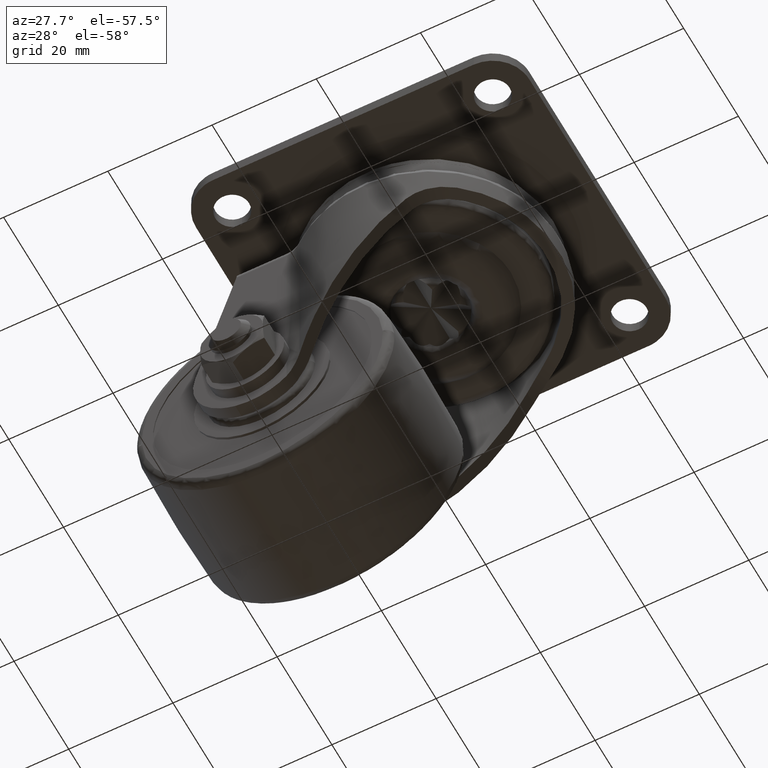
[diagram: clean part render]
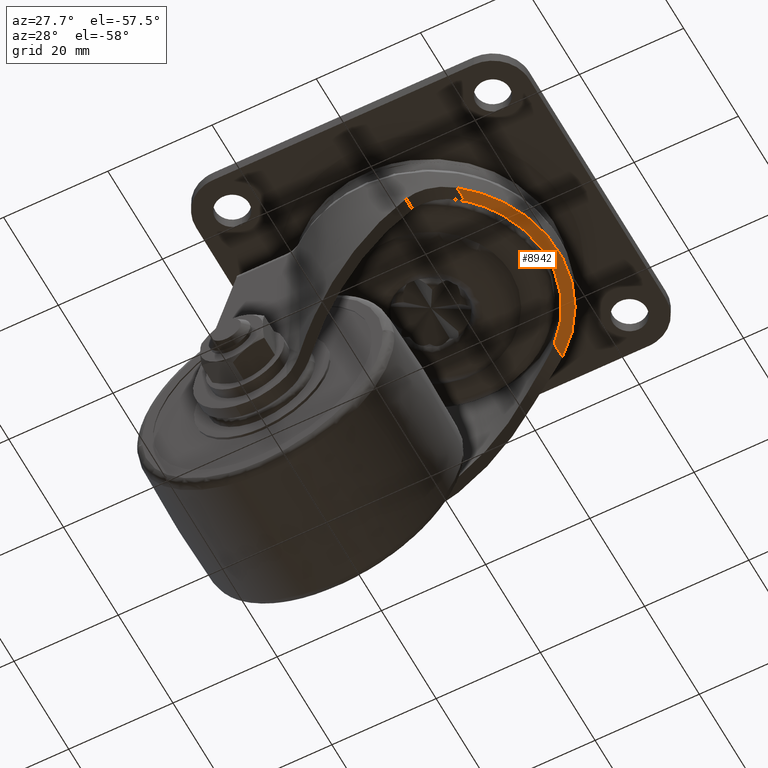
[diagram: same view with one face highlighted and labeled with its STEP entity id]
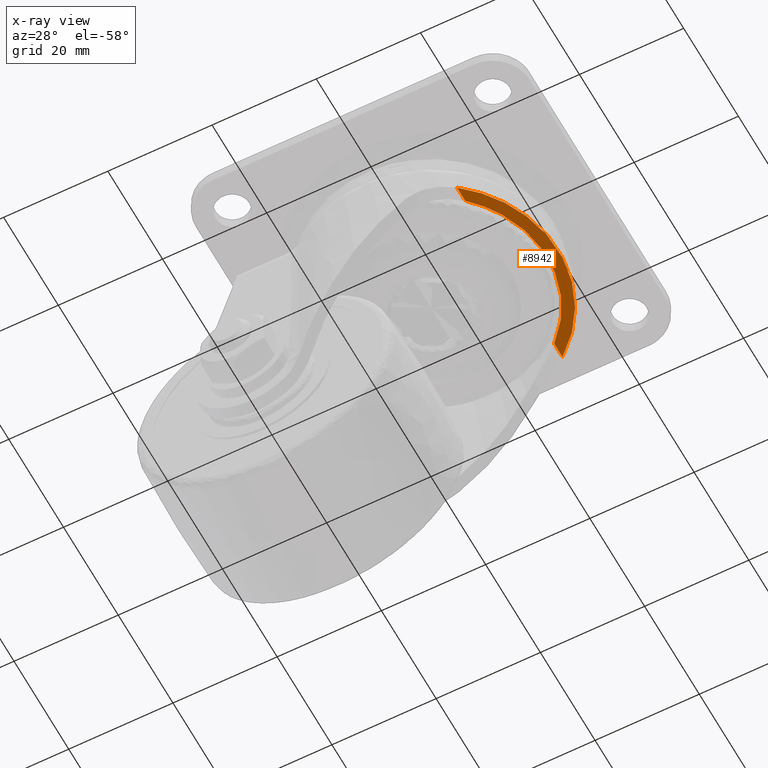
[diagram: x-ray of the same camera — body ghosted, the highlighted face saturated]
A machine part, auxiliary view. The second image highlights one B-rep face of the part: STEP entity #8942.
The next image is the same camera in x-ray: the body ghosted, the highlighted face saturated — about 0% of this face is hidden behind the body in this view.
In plain terms, the highlighted face is a freeform B-spline surface patch.
Its self-contained STEP definition (entity closure, byte-faithful):
#8877=CARTESIAN_POINT('',(24.968570492268199,-21.204392320989669,-16.300000000000001));
#8878=CARTESIAN_POINT('',(14.650638256119530,-21.204392320989669,-16.300000000000001));
#8879=CARTESIAN_POINT('',(24.968570492268199,21.204393355167539,-16.300000000000001));
#8880=CARTESIAN_POINT('',(14.650638256119530,21.204393355167539,-16.300000000000001));
#8881=B_SPLINE_SURFACE_WITH_KNOTS('',1,1,((#8877,#8879),(#8878,#8880)),.UNSPECIFIED.,.F.,.F.,.U.,(2,2),(2,2),(0.0,10.317932236148669),(0.0,42.408785676157208),.UNSPECIFIED.);
#8882=CARTESIAN_POINT('',(15.119209000000151,19.278472948195748,-16.300000000000001));
#8883=VERTEX_POINT('',#8882);
#8884=CARTESIAN_POINT('',(15.119209000000151,-19.278472948195748,-16.300000000000001));
#8885=VERTEX_POINT('',#8884);
#8886=CARTESIAN_POINT('',(15.119209000000151,19.278472948195748,-16.300000000000001));
#8887=CARTESIAN_POINT('',(16.074147137751609,18.529636923405061,-16.299999999999969));
#8888=CARTESIAN_POINT('',(17.658306222329280,17.084872820967831,-16.300000000000079));
#8889=CARTESIAN_POINT('',(19.710390806725879,14.651140702535900,-16.299999999999940));
#8890=CARTESIAN_POINT('',(21.424639600449691,12.036055902041101,-16.300000000000011));
#8891=CARTESIAN_POINT('',(22.798465383354820,9.161158893992884,-16.300000000000079));
#8892=CARTESIAN_POINT('',(23.676965673086229,6.463898660308917,-16.299999999999780));
#8893=CARTESIAN_POINT('',(24.225345527612038,3.919535422413526,-16.300000000000018));
#8894=CARTESIAN_POINT('',(24.513076561604240,1.389117850514920,-16.300000000000399));
#8895=CARTESIAN_POINT('',(24.513074905361730,-1.389125485997275,-16.299999999999560));
#8896=CARTESIAN_POINT('',(24.225332106824929,-3.919534302081320,-16.300000000000249));
#8897=CARTESIAN_POINT('',(23.591740403504819,-6.859718056645995,-16.299999999999571));
#8898=CARTESIAN_POINT('',(22.587024814353200,-9.703219176497761,-16.299999999999859));
#8899=CARTESIAN_POINT('',(21.220718479578242,-12.319893755213810,-16.299999999999990));
#8900=CARTESIAN_POINT('',(19.833277996094541,-14.452945964029700,-16.300000000000061));
#8901=CARTESIAN_POINT('',(17.950344202876970,-16.801775450322928,-16.299999999999940));
#8902=CARTESIAN_POINT('',(16.210596546954580,-18.422690283167029,-16.300000000000018));
#8903=CARTESIAN_POINT('',(15.119209000000151,-19.278472948195748,-16.300000000000001));
#8904=B_SPLINE_CURVE_WITH_KNOTS('',3,(#8886,#8887,#8888,#8889,#8890,#8891,#8892,#8893,#8894,#8895,#8896,#8897,#8898,#8899,#8900,#8901,#8902,#8903),.UNSPECIFIED.,.F.,.U.,(4,1,1,1,1,1,1,1,1,1,1,1,1,1,1,4),(0.000000010872093,3.640598288508102,6.414416920337168,9.534958627160854,13.002225730986170,15.949392707626190,18.029758739875501,20.803567174876370,23.577347514498051,26.351161758877719,28.431510900555239,32.592229275962403,35.366039446121057,37.273039331265693,40.220219799522809,44.380909516460122),.UNSPECIFIED.);
#8905=EDGE_CURVE('',#8883,#8885,#8904,.T.);
#8906=ORIENTED_EDGE('',*,*,#8905,.T.);
#8907=CARTESIAN_POINT('',(15.119209000000151,-16.255753418845750,-16.300000000000001));
#8908=VERTEX_POINT('',#8907);
#8909=CARTESIAN_POINT('',(15.119209000000151,-19.278472948195748,-16.300000000000001));
#8910=CARTESIAN_POINT('',(15.119209000000151,-16.255753418845750,-16.300000000000001));
#8911=QUASI_UNIFORM_CURVE('',1,(#8909,#8910),.UNSPECIFIED.,.F.,.U.);
#8912=EDGE_CURVE('',#8885,#8908,#8911,.T.);
#8913=ORIENTED_EDGE('',*,*,#8912,.T.);
#8914=CARTESIAN_POINT('',(15.119209000000151,16.255753418845750,-16.300000000000001));
#8915=VERTEX_POINT('',#8914);
#8916=CARTESIAN_POINT('',(15.119209000000151,16.255753418845750,-16.300000000000001));
#8917=CARTESIAN_POINT('',(15.953993091218400,15.479427080785349,-16.300000000000001));
#8918=CARTESIAN_POINT('',(17.471272537048701,13.832800852160780,-16.300000000000018));
#8919=CARTESIAN_POINT('',(19.070071610575660,11.464176303016540,-16.299999999999990));
#8920=CARTESIAN_POINT('',(20.207649055490471,9.269343688092976,-16.300000000000029));
#8921=CARTESIAN_POINT('',(21.083218719450610,7.109533576658075,-16.299999999999940));
#8922=CARTESIAN_POINT('',(21.742399347688750,4.723880720617060,-16.300000000000040));
#8923=CARTESIAN_POINT('',(22.143780221138989,2.138966832427642,-16.300000000000040));
#8924=CARTESIAN_POINT('',(22.254969712183840,-0.523605452100159,-16.299999999999979));
#8925=CARTESIAN_POINT('',(22.024222382450102,-3.179595355225950,-16.300000000000001));
#8926=CARTESIAN_POINT('',(21.442187680623739,-5.973334962238421,-16.299999999999990));
#8927=CARTESIAN_POINT('',(20.545569058978440,-8.586243225849866,-16.300000000000040));
#8928=CARTESIAN_POINT('',(19.264231812221009,-11.137853954447010,-16.299999999999951));
#8929=CARTESIAN_POINT('',(17.558811230422162,-13.717726771863260,-16.300000000000072));
#8930=CARTESIAN_POINT('',(16.093167309888980,-15.350070932779481,-16.299999999999859));
#8931=CARTESIAN_POINT('',(15.119209000000151,-16.255753418845750,-16.300000000000001));
#8932=B_SPLINE_CURVE_WITH_KNOTS('',3,(#8916,#8917,#8918,#8919,#8920,#8921,#8922,#8923,#8924,#8925,#8926,#8927,#8928,#8929,#8930,#8931),.UNSPECIFIED.,.F.,.U.,(4,1,1,1,1,1,1,1,1,1,1,1,1,4),(0.000000024926692,3.419926879843544,6.697384514278788,8.549860034709379,10.829829622061361,13.679791173924340,15.959743420304200,18.667169446474318,21.659632839901889,23.939601356034409,27.217058439873650,29.924523911500192,32.489482575554270,36.479408881532990),.UNSPECIFIED.);
#8933=EDGE_CURVE('',#8915,#8908,#8932,.T.);
#8934=ORIENTED_EDGE('',*,*,#8933,.F.);
#8935=CARTESIAN_POINT('',(15.119209000000151,16.255753418845750,-16.300000000000001));
#8936=CARTESIAN_POINT('',(15.119209000000151,19.278472948195748,-16.300000000000001));
#8937=QUASI_UNIFORM_CURVE('',1,(#8935,#8936),.UNSPECIFIED.,.F.,.U.);
#8938=EDGE_CURVE('',#8915,#8883,#8937,.T.);
#8939=ORIENTED_EDGE('',*,*,#8938,.T.);
#8940=EDGE_LOOP('',(#8906,#8913,#8934,#8939));
#8941=FACE_OUTER_BOUND('',#8940,.T.);
#8942=ADVANCED_FACE('',(#8941),#8881,.T.);